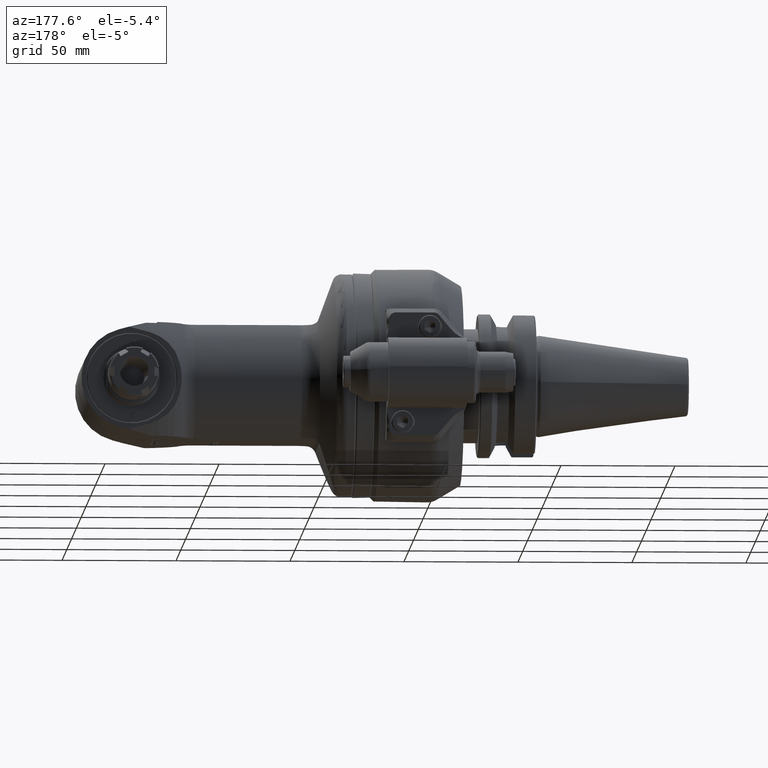
[diagram: clean part render]
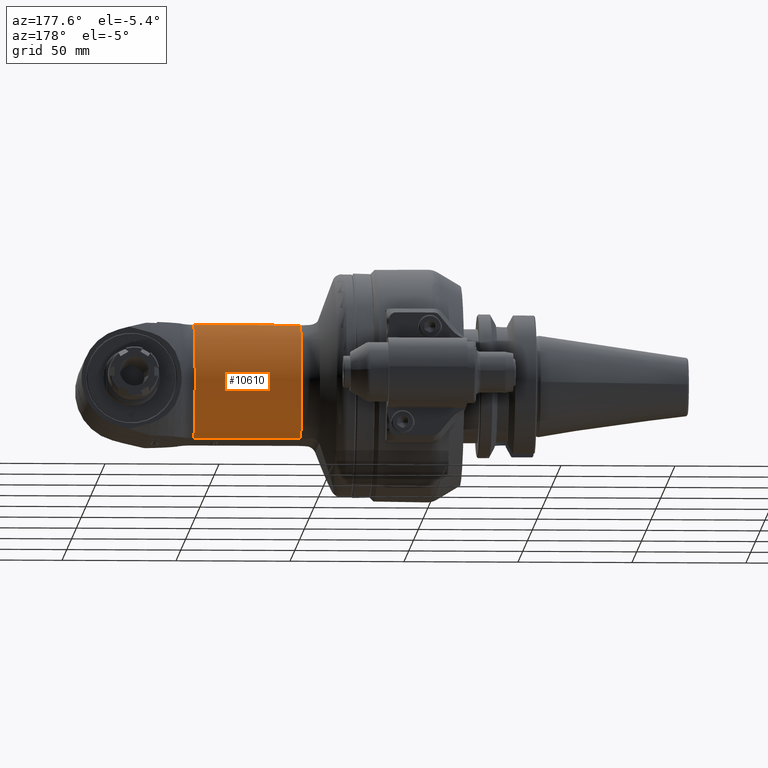
[diagram: same view with one face highlighted and labeled with its STEP entity id]
A machine part, auxiliary view. The second image highlights one B-rep face of the part: STEP entity #10610.
In plain terms, the highlighted cylindrical surface (partial cylindrical patch) has radius 30 mm, axis along (-1, -0, 0).
Its self-contained STEP definition (entity closure, byte-faithful):
#385=CYLINDRICAL_SURFACE('',#11439,1.18110236220472);
#616=CIRCLE('',#11438,1.18110236220472);
#617=CIRCLE('',#11440,1.18110236220472);
#1329=FACE_OUTER_BOUND('',#2022,.T.);
#2022=EDGE_LOOP('',(#7440,#7441,#7442,#7443));
#2908=LINE('',#16291,#3635);
#2909=LINE('',#16294,#3636);
#3635=VECTOR('',#12990,1.84141789906299);
#3636=VECTOR('',#12993,1.84141789906299);
#4452=VERTEX_POINT('',#16259);
#4453=VERTEX_POINT('',#16260);
#4455=VERTEX_POINT('',#16290);
#4456=VERTEX_POINT('',#16292);
#5591=EDGE_CURVE('',#4452,#4453,#616,.T.);
#5595=EDGE_CURVE('',#4452,#4455,#2908,.T.);
#5596=EDGE_CURVE('',#4456,#4455,#617,.T.);
#5597=EDGE_CURVE('',#4456,#4453,#2909,.T.);
#7440=ORIENTED_EDGE('',*,*,#5591,.F.);
#7441=ORIENTED_EDGE('',*,*,#5595,.T.);
#7442=ORIENTED_EDGE('',*,*,#5596,.F.);
#7443=ORIENTED_EDGE('',*,*,#5597,.T.);
#10610=ADVANCED_FACE('',(#1329),#385,.T.);
#11438=AXIS2_PLACEMENT_3D('',#16261,#12986,#12987);
#11439=AXIS2_PLACEMENT_3D('',#16289,#12988,#12989);
#11440=AXIS2_PLACEMENT_3D('',#16293,#12991,#12992);
#12986=DIRECTION('center_axis',(-1.,0.,0.));
#12987=DIRECTION('ref_axis',(0.,0.552770798392605,0.833333333333308));
#12988=DIRECTION('center_axis',(-1.,0.,0.));
#12989=DIRECTION('ref_axis',(0.,1.,0.));
#12990=DIRECTION('',(1.,0.,0.));
#12991=DIRECTION('center_axis',(1.,0.,0.));
#12992=DIRECTION('ref_axis',(0.,0.552770798392605,-0.833333333333308));
#12993=DIRECTION('',(-1.,0.,0.));
#16259=CARTESIAN_POINT('',(1.22700029850276,0.65287889573937,0.984251968503937));
#16260=CARTESIAN_POINT('',(1.22700029850276,0.65287889573937,-0.984251968503937));
#16261=CARTESIAN_POINT('Origin',(1.22700029850276,0.,0.));
#16289=CARTESIAN_POINT('Origin',(2.79427026105827,0.,0.));
#16290=CARTESIAN_POINT('',(3.06841819756575,0.65287889573937,0.984251968503937));
#16291=CARTESIAN_POINT('',(1.22700029850276,0.65287889573937,0.984251968503937));
#16292=CARTESIAN_POINT('',(3.06841819756575,0.65287889573937,-0.984251968503937));
#16293=CARTESIAN_POINT('Origin',(3.06841819756575,0.,0.));
#16294=CARTESIAN_POINT('',(3.06841819756575,0.65287889573937,-0.984251968503937));